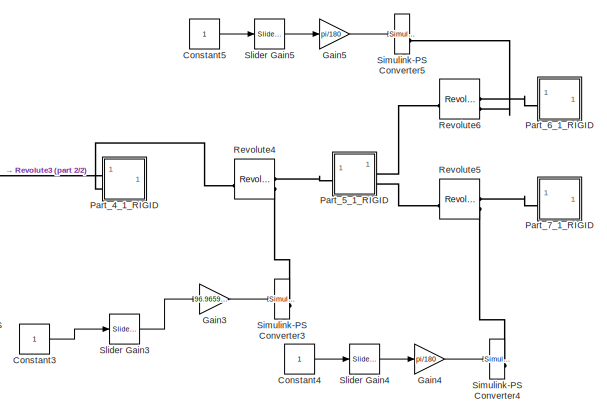
[diagram: root canvas - part 1/2, right side, full height]
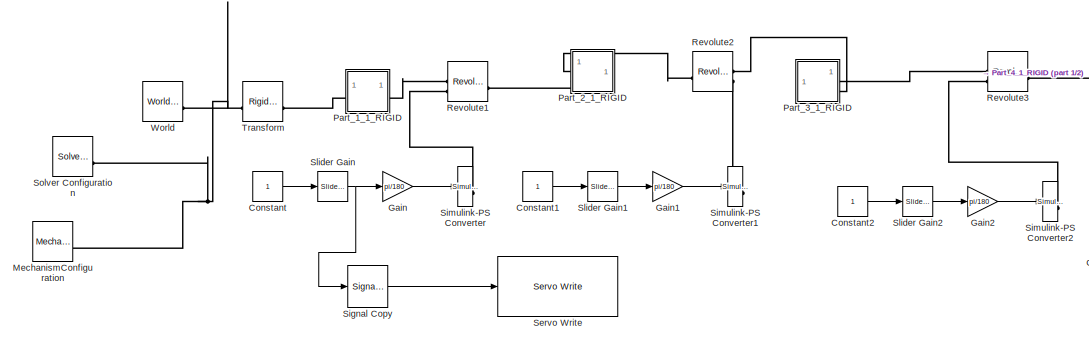
[diagram: root canvas - part 2/2, middle left region]
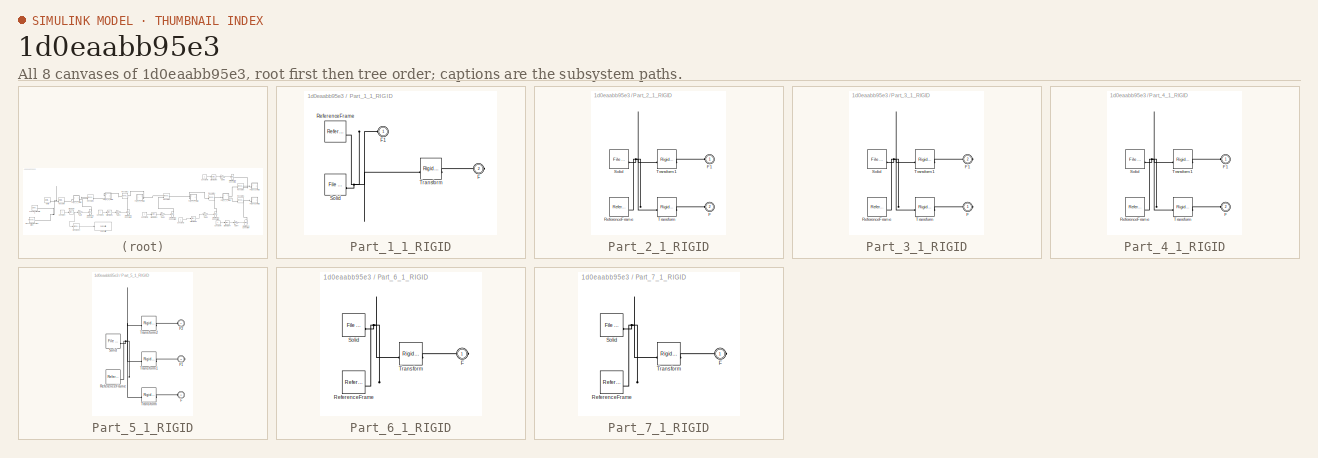
[diagram: thumbnail index - all 8 canvases of the model, root first then tree order]
MODEL slx_1d0eaabb95e3
KIND model
CONFIG AbsTol = auto
CONFIG EnableMultiTasking = off
CONFIG FixedStep = auto
CONFIG MaxStep = auto
CONFIG MinStep = auto
CONFIG RelTol = 1e-3
CONFIG SampleTimeConstraint = Unconstrained
CONFIG SolverName = FixedStepAuto
CONFIG StartTime = 0.0
CONFIG StopTime = 10.0
WORKSPACE source: external: MATLAB File  (data not in archive)
BLOCK [Constant] Constant
BLOCK [Constant] Constant1
BLOCK [Constant] Constant2
BLOCK [Constant] Constant3
BLOCK [Constant] Constant4
BLOCK [Constant] Constant5
BLOCK [Gain] Gain
  Gain = pi/180
BLOCK [Gain] Gain1
  Gain = pi/180
BLOCK [Gain] Gain2
  Gain = pi/180
BLOCK [Gain] Gain3
  Gain = 96.96594427244582
BLOCK [Gain] Gain4
  Gain = pi/180
BLOCK [Gain] Gain5
  Gain = pi/180
BLOCK [Reference] MechanismConfiguration  REF=sm_lib/Utilities/Mechanism
Configuration
  SourceBlock = sm_lib/Utilities/Mechanism\nConfiguration
  SourceType = Mechanism\nConfiguration
BLOCK [SubSystem] Part_1_1_RIGID
BLOCK [PMIOPort] Part_1_1_RIGID/F
  Port = 2
  Side = Right
BLOCK [PMIOPort] Part_1_1_RIGID/F1
  Side = Left
BLOCK [Reference] Part_1_1_RIGID/ReferenceFrame  REF=sm_lib/Frames and
Transforms/Reference
Frame
  SourceBlock = sm_lib/Frames and\nTransforms/Reference\nFrame
  SourceType = Reference\nFrame
BLOCK [Reference] Part_1_1_RIGID/Solid  REF=sm_lib/Body Elements/File Solid
  SourceBlock = sm_lib/Body Elements/File Solid
  SourceType = File Solid
BLOCK [Reference] Part_1_1_RIGID/Transform  REF=sm_lib/Frames and
Transforms/Rigid
Transform
  SourceBlock = sm_lib/Frames and\nTransforms/Rigid\nTransform
  SourceType = Rigid\nTransform
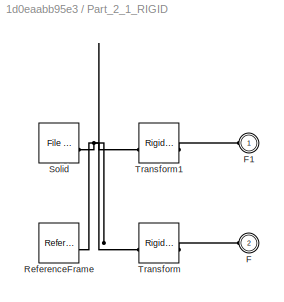
BLOCK [SubSystem] Part_2_1_RIGID
BLOCK [PMIOPort] Part_2_1_RIGID/F
  Port = 2
  Side = Left
BLOCK [PMIOPort] Part_2_1_RIGID/F1
  Side = Left
BLOCK [Reference] Part_2_1_RIGID/ReferenceFrame  REF=sm_lib/Frames and
Transforms/Reference
Frame
  SourceBlock = sm_lib/Frames and\nTransforms/Reference\nFrame
  SourceType = Reference\nFrame
BLOCK [Reference] Part_2_1_RIGID/Solid  REF=sm_lib/Body Elements/File Solid
  SourceBlock = sm_lib/Body Elements/File Solid
  SourceType = File Solid
BLOCK [Reference] Part_2_1_RIGID/Transform  REF=sm_lib/Frames and
Transforms/Rigid
Transform
  SourceBlock = sm_lib/Frames and\nTransforms/Rigid\nTransform
  SourceType = Rigid\nTransform
BLOCK [Reference] Part_2_1_RIGID/Transform1  REF=sm_lib/Frames and
Transforms/Rigid
Transform
  SourceBlock = sm_lib/Frames and\nTransforms/Rigid\nTransform
  SourceType = Rigid\nTransform
BLOCK [SubSystem] Part_3_1_RIGID
BLOCK [PMIOPort] Part_3_1_RIGID/F
  Side = Right
BLOCK [PMIOPort] Part_3_1_RIGID/F1
  Port = 2
  Side = Right
BLOCK [Reference] Part_3_1_RIGID/ReferenceFrame  REF=sm_lib/Frames and
Transforms/Reference
Frame
  SourceBlock = sm_lib/Frames and\nTransforms/Reference\nFrame
  SourceType = Reference\nFrame
BLOCK [Reference] Part_3_1_RIGID/Solid  REF=sm_lib/Body Elements/File Solid
  SourceBlock = sm_lib/Body Elements/File Solid
  SourceType = File Solid
BLOCK [Reference] Part_3_1_RIGID/Transform  REF=sm_lib/Frames and
Transforms/Rigid
Transform
  SourceBlock = sm_lib/Frames and\nTransforms/Rigid\nTransform
  SourceType = Rigid\nTransform
BLOCK [Reference] Part_3_1_RIGID/Transform1  REF=sm_lib/Frames and
Transforms/Rigid
Transform
  SourceBlock = sm_lib/Frames and\nTransforms/Rigid\nTransform
  SourceType = Rigid\nTransform
BLOCK [SubSystem] Part_4_1_RIGID
BLOCK [PMIOPort] Part_4_1_RIGID/F
  Port = 2
  Side = Left
BLOCK [PMIOPort] Part_4_1_RIGID/F1
  Side = Left
BLOCK [Reference] Part_4_1_RIGID/ReferenceFrame  REF=sm_lib/Frames and
Transforms/Reference
Frame
  SourceBlock = sm_lib/Frames and\nTransforms/Reference\nFrame
  SourceType = Reference\nFrame
BLOCK [Reference] Part_4_1_RIGID/Solid  REF=sm_lib/Body Elements/File Solid
  SourceBlock = sm_lib/Body Elements/File Solid
  SourceType = File Solid
BLOCK [Reference] Part_4_1_RIGID/Transform  REF=sm_lib/Frames and
Transforms/Rigid
Transform
  SourceBlock = sm_lib/Frames and\nTransforms/Rigid\nTransform
  SourceType = Rigid\nTransform
BLOCK [Reference] Part_4_1_RIGID/Transform1  REF=sm_lib/Frames and
Transforms/Rigid
Transform
  SourceBlock = sm_lib/Frames and\nTransforms/Rigid\nTransform
  SourceType = Rigid\nTransform
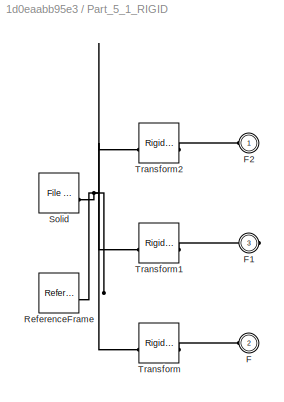
BLOCK [SubSystem] Part_5_1_RIGID
BLOCK [PMIOPort] Part_5_1_RIGID/F
  Port = 2
  Side = Left
BLOCK [PMIOPort] Part_5_1_RIGID/F1
  Port = 3
  Side = Right
BLOCK [PMIOPort] Part_5_1_RIGID/F2
  Side = Left
BLOCK [Reference] Part_5_1_RIGID/ReferenceFrame  REF=sm_lib/Frames and
Transforms/Reference
Frame
  SourceBlock = sm_lib/Frames and\nTransforms/Reference\nFrame
  SourceType = Reference\nFrame
BLOCK [Reference] Part_5_1_RIGID/Solid  REF=sm_lib/Body Elements/File Solid
  SourceBlock = sm_lib/Body Elements/File Solid
  SourceType = File Solid
BLOCK [Reference] Part_5_1_RIGID/Transform  REF=sm_lib/Frames and
Transforms/Rigid
Transform
  SourceBlock = sm_lib/Frames and\nTransforms/Rigid\nTransform
  SourceType = Rigid\nTransform
BLOCK [Reference] Part_5_1_RIGID/Transform1  REF=sm_lib/Frames and
Transforms/Rigid
Transform
  SourceBlock = sm_lib/Frames and\nTransforms/Rigid\nTransform
  SourceType = Rigid\nTransform
BLOCK [Reference] Part_5_1_RIGID/Transform2  REF=sm_lib/Frames and
Transforms/Rigid
Transform
  SourceBlock = sm_lib/Frames and\nTransforms/Rigid\nTransform
  SourceType = Rigid\nTransform
BLOCK [SubSystem] Part_6_1_RIGID
BLOCK [PMIOPort] Part_6_1_RIGID/F
  Side = Right
BLOCK [Reference] Part_6_1_RIGID/ReferenceFrame  REF=sm_lib/Frames and
Transforms/Reference
Frame
  SourceBlock = sm_lib/Frames and\nTransforms/Reference\nFrame
  SourceType = Reference\nFrame
BLOCK [Reference] Part_6_1_RIGID/Solid  REF=sm_lib/Body Elements/File Solid
  SourceBlock = sm_lib/Body Elements/File Solid
  SourceType = File Solid
BLOCK [Reference] Part_6_1_RIGID/Transform  REF=sm_lib/Frames and
Transforms/Rigid
Transform
  SourceBlock = sm_lib/Frames and\nTransforms/Rigid\nTransform
  SourceType = Rigid\nTransform
BLOCK [SubSystem] Part_7_1_RIGID
BLOCK [PMIOPort] Part_7_1_RIGID/F
  Side = Right
BLOCK [Reference] Part_7_1_RIGID/ReferenceFrame  REF=sm_lib/Frames and
Transforms/Reference
Frame
  SourceBlock = sm_lib/Frames and\nTransforms/Reference\nFrame
  SourceType = Reference\nFrame
BLOCK [Reference] Part_7_1_RIGID/Solid  REF=sm_lib/Body Elements/File Solid
  SourceBlock = sm_lib/Body Elements/File Solid
  SourceType = File Solid
BLOCK [Reference] Part_7_1_RIGID/Transform  REF=sm_lib/Frames and
Transforms/Rigid
Transform
  SourceBlock = sm_lib/Frames and\nTransforms/Rigid\nTransform
  SourceType = Rigid\nTransform
BLOCK [Reference] Revolute1  REF=sm_lib/Joints/Revolute Joint
  SourceBlock = sm_lib/Joints/Revolute Joint
  SourceType = Revolute Joint
BLOCK [Reference] Revolute2  REF=sm_lib/Joints/Revolute Joint
  SourceBlock = sm_lib/Joints/Revolute Joint
  SourceType = Revolute Joint
BLOCK [Reference] Revolute3  REF=sm_lib/Joints/Revolute Joint
  SourceBlock = sm_lib/Joints/Revolute Joint
  SourceType = Revolute Joint
BLOCK [Reference] Revolute4  REF=sm_lib/Joints/Revolute Joint
  SourceBlock = sm_lib/Joints/Revolute Joint
  SourceType = Revolute Joint
BLOCK [Reference] Revolute5  REF=sm_lib/Joints/Revolute Joint
  SourceBlock = sm_lib/Joints/Revolute Joint
  SourceType = Revolute Joint
BLOCK [Reference] Revolute6  REF=sm_lib/Joints/Revolute Joint
  SourceBlock = sm_lib/Joints/Revolute Joint
  SourceType = Revolute Joint
BLOCK [Reference] Servo Write  REF=arduinomotorcarrierlib/Servo Write
  SourceBlock = arduinomotorcarrierlib/Servo Write
  SourceProductName = Arduino Motor Carrier
  SourceType = MKR Servo Motor
BLOCK [SignalConversion] Signal Copy
  OverrideOpt = off
BLOCK [Reference] Simulink-PS Converter  REF=nesl_utility/Simulink-PS
Converter
  SourceBlock = nesl_utility/Simulink-PS\nConverter
  SourceType = Simulink-PS\nConverter
BLOCK [Reference] Simulink-PS Converter1  REF=nesl_utility/Simulink-PS
Converter
  SourceBlock = nesl_utility/Simulink-PS\nConverter
  SourceType = Simulink-PS\nConverter
BLOCK [Reference] Simulink-PS Converter2  REF=nesl_utility/Simulink-PS
Converter
  SourceBlock = nesl_utility/Simulink-PS\nConverter
  SourceType = Simulink-PS\nConverter
BLOCK [Reference] Simulink-PS Converter3  REF=nesl_utility/Simulink-PS
Converter
  SourceBlock = nesl_utility/Simulink-PS\nConverter
  SourceType = Simulink-PS\nConverter
BLOCK [Reference] Simulink-PS Converter4  REF=nesl_utility/Simulink-PS
Converter
  SourceBlock = nesl_utility/Simulink-PS\nConverter
  SourceType = Simulink-PS\nConverter
BLOCK [Reference] Simulink-PS Converter5  REF=nesl_utility/Simulink-PS
Converter
  SourceBlock = nesl_utility/Simulink-PS\nConverter
  SourceType = Simulink-PS\nConverter
BLOCK [Reference] Slider Gain  REF=simulink/Math
Operations/Slider
Gain
  SourceBlock = simulink/Math\nOperations/Slider\nGain
  SourceType = Slider Gain
BLOCK [Reference] Slider Gain1  REF=simulink/Math
Operations/Slider
Gain
  SourceBlock = simulink/Math\nOperations/Slider\nGain
  SourceType = Slider Gain
BLOCK [Reference] Slider Gain2  REF=simulink/Math
Operations/Slider
Gain
  SourceBlock = simulink/Math\nOperations/Slider\nGain
  SourceType = Slider Gain
BLOCK [Reference] Slider Gain3  REF=simulink/Math
Operations/Slider
Gain
  SourceBlock = simulink/Math\nOperations/Slider\nGain
  SourceType = Slider Gain
BLOCK [Reference] Slider Gain4  REF=simulink/Math
Operations/Slider
Gain
  SourceBlock = simulink/Math\nOperations/Slider\nGain
  SourceType = Slider Gain
BLOCK [Reference] Slider Gain5  REF=simulink/Math
Operations/Slider
Gain
  SourceBlock = simulink/Math\nOperations/Slider\nGain
  SourceType = Slider Gain
BLOCK [Reference] Solver Configuration  REF=nesl_utility/Solver
Configuration
  SourceBlock = nesl_utility/Solver\nConfiguration
  SourceType = Solver\nConfiguration
BLOCK [Reference] Transform  REF=sm_lib/Frames and
Transforms/Rigid
Transform
  SourceBlock = sm_lib/Frames and\nTransforms/Rigid\nTransform
  SourceType = Rigid\nTransform
BLOCK [Reference] World  REF=sm_lib/Frames and
Transforms/World Frame
  SourceBlock = sm_lib/Frames and\nTransforms/World Frame
  SourceType = World Frame
LINE Constant1:1 -> Slider Gain1:1
LINE Constant2:1 -> Slider Gain2:1
LINE Constant3:1 -> Slider Gain3:1
LINE Constant4:1 -> Slider Gain4:1
LINE Constant5:1 -> Slider Gain5:1
LINE Constant:1 -> Slider Gain:1
LINE Gain1:1 -> Simulink-PS Converter1:1
LINE Gain2:1 -> Simulink-PS Converter2:1
LINE Gain3:1 -> Simulink-PS Converter3:1
LINE Gain4:1 -> Simulink-PS Converter4:1
LINE Gain5:1 -> Simulink-PS Converter5:1
LINE Gain:1 -> Simulink-PS Converter:1
LINE Signal Copy:1 -> Servo Write:1
LINE Slider Gain1:1 -> Gain1:1
LINE Slider Gain2:1 -> Gain2:1
LINE Slider Gain3:1 -> Gain3:1
LINE Slider Gain4:1 -> Gain4:1
LINE Slider Gain5:1 -> Gain5:1
NET Slider Gain:1 -> Gain:1, Signal Copy:1
PNET net1: MechanismConfiguration:RConn1 -- Solver Configuration:RConn1 -- Transform:LConn1 -- World:RConn1
PNET net2: Part_1_1_RIGID/F1:RConn1 -- Part_1_1_RIGID/ReferenceFrame:RConn1 -- Part_1_1_RIGID/Solid:RConn1 -- Part_1_1_RIGID/Transform:LConn1
PLINE Part_1_1_RIGID/F:RConn1 -- Part_1_1_RIGID/Transform:RConn1
PLINE Part_1_1_RIGID:LConn1 -- Transform:RConn1
PLINE Part_1_1_RIGID:RConn1 -- Revolute1:LConn1
PLINE Part_2_1_RIGID/F1:RConn1 -- Part_2_1_RIGID/Transform1:RConn1
PLINE Part_2_1_RIGID/F:RConn1 -- Part_2_1_RIGID/Transform:RConn1
PNET net3: Part_2_1_RIGID/ReferenceFrame:RConn1 -- Part_2_1_RIGID/Solid:RConn1 -- Part_2_1_RIGID/Transform1:LConn1 -- Part_2_1_RIGID/Transform:LConn1
PLINE Part_2_1_RIGID:LConn1 -- Revolute2:RConn1
PLINE Part_2_1_RIGID:LConn2 -- Revolute1:RConn1
PLINE Part_3_1_RIGID/F1:RConn1 -- Part_3_1_RIGID/Transform1:RConn1
PLINE Part_3_1_RIGID/F:RConn1 -- Part_3_1_RIGID/Transform:RConn1
PNET net4: Part_3_1_RIGID/ReferenceFrame:RConn1 -- Part_3_1_RIGID/Solid:RConn1 -- Part_3_1_RIGID/Transform1:LConn1 -- Part_3_1_RIGID/Transform:LConn1
PLINE Part_3_1_RIGID:RConn1 -- Revolute3:LConn1
PLINE Part_3_1_RIGID:RConn2 -- Revolute2:LConn1
PLINE Part_4_1_RIGID/F1:RConn1 -- Part_4_1_RIGID/Transform1:RConn1
PLINE Part_4_1_RIGID/F:RConn1 -- Part_4_1_RIGID/Transform:RConn1
PNET net5: Part_4_1_RIGID/ReferenceFrame:RConn1 -- Part_4_1_RIGID/Solid:RConn1 -- Part_4_1_RIGID/Transform1:LConn1 -- Part_4_1_RIGID/Transform:LConn1
PLINE Part_4_1_RIGID:LConn1 -- Revolute3:RConn1
PLINE Part_4_1_RIGID:LConn2 -- Revolute4:RConn1
PLINE Part_5_1_RIGID/F1:RConn1 -- Part_5_1_RIGID/Transform1:RConn1
PLINE Part_5_1_RIGID/F2:RConn1 -- Part_5_1_RIGID/Transform2:RConn1
PLINE Part_5_1_RIGID/F:RConn1 -- Part_5_1_RIGID/Transform:RConn1
PNET net6: Part_5_1_RIGID/ReferenceFrame:RConn1 -- Part_5_1_RIGID/Solid:RConn1 -- Part_5_1_RIGID/Transform1:LConn1 -- Part_5_1_RIGID/Transform2:LConn1 -- Part_5_1_RIGID/Transform:LConn1
PLINE Part_5_1_RIGID:LConn1 -- Revolute6:RConn1
PLINE Part_5_1_RIGID:LConn2 -- Revolute5:RConn1
PLINE Part_5_1_RIGID:RConn1 -- Revolute4:LConn1
PLINE Part_6_1_RIGID/F:RConn1 -- Part_6_1_RIGID/Transform:RConn1
PNET net7: Part_6_1_RIGID/ReferenceFrame:RConn1 -- Part_6_1_RIGID/Solid:RConn1 -- Part_6_1_RIGID/Transform:LConn1
PLINE Part_6_1_RIGID:RConn1 -- Revolute6:LConn1
PLINE Part_7_1_RIGID/F:RConn1 -- Part_7_1_RIGID/Transform:RConn1
PNET net8: Part_7_1_RIGID/ReferenceFrame:RConn1 -- Part_7_1_RIGID/Solid:RConn1 -- Part_7_1_RIGID/Transform:LConn1
PLINE Part_7_1_RIGID:RConn1 -- Revolute5:LConn1
PLINE Revolute1:LConn2 -- Simulink-PS Converter:RConn1
PLINE Revolute2:LConn2 -- Simulink-PS Converter1:RConn1
PLINE Revolute3:LConn2 -- Simulink-PS Converter2:RConn1
PLINE Revolute4:LConn2 -- Simulink-PS Converter3:RConn1
PLINE Revolute5:LConn2 -- Simulink-PS Converter4:RConn1
PLINE Revolute6:LConn2 -- Simulink-PS Converter5:RConn1
note: NET lines group one-source signal fan-out (src -> all destinations, sorted); 1:1 wires keep LINE; PNET lines group multi-terminal physical nets as a canonical sorted terminal list (undirected conserving connections); 2-terminal nets keep the pairwise PLINE form
